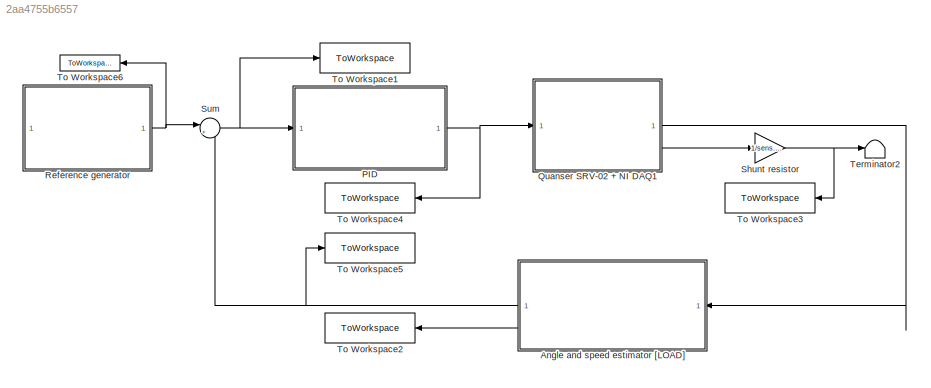
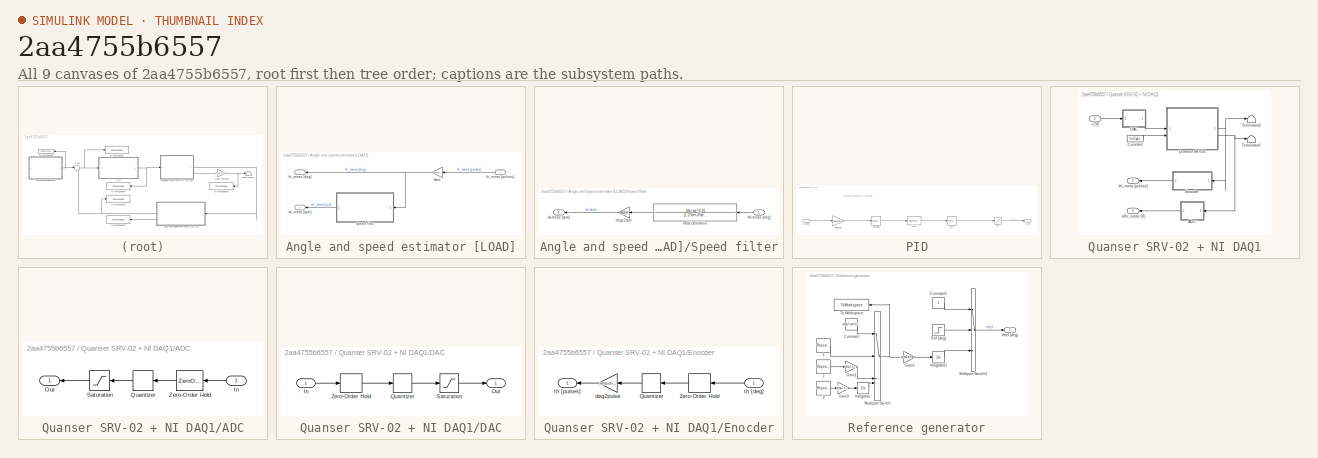
[diagram: thumbnail index - all 9 canvases of the model, root first then tree order]
MODEL slx_2aa4755b6557
KIND model
CONFIG AbsTol = auto
CONFIG EnableMultiTasking = off
CONFIG FixedStep = auto
CONFIG MaxStep = auto
CONFIG MinStep = auto
CONFIG RelTol = 1e-3
CONFIG SampleTimeConstraint = Unconstrained
CONFIG SolverName = ode45
CONFIG StartTime = 0.0
CONFIG StopTime = 5
BLOCK [SubSystem] Angle and speed estimator [LOAD]
  NameLocation = top
BLOCK [Gain] Angle and speed estimator [LOAD]/Gain
  Gain = sens.enc.pulse2deg
  NameLocation = top
BLOCK [SubSystem] Angle and speed estimator [LOAD]/Speed filter
  NameLocation = top
BLOCK [TransferFcn] Angle and speed estimator [LOAD]/Speed filter/Real Derivative
  Denominator = [1 2*der.d*der.wc der.wc^2]
  NameLocation = top
  Numerator = [der.wc^2 0]
BLOCK [Gain] Angle and speed estimator [LOAD]/Speed filter/degs2rpm
  Gain = degs2rpm
BLOCK [Inport] Angle and speed estimator [LOAD]/Speed filter/thl-meas [deg]
BLOCK [Outport] Angle and speed estimator [LOAD]/Speed filter/wl-meas [rpm]
BLOCK [Outport] Angle and speed estimator [LOAD]/th_meas [deg]
BLOCK [Inport] Angle and speed estimator [LOAD]/th_meas [pulses]
  NameLocation = top
BLOCK [Outport] Angle and speed estimator [LOAD]/wl_meas [rpm]
  Port = 2
BLOCK [SubSystem] PID
BLOCK [DiscreteTransferFcn] PID/C(z)
  Denominator = pidz.Cdenom
  InputPortMap = u0
  Numerator = pidz.Cnum
  SampleTime = T(simul.Ts_selector)
BLOCK [Saturate] PID/FIX 
  LowerLimit = -10
  UpperLimit = 10
BLOCK [ZeroOrderHold] PID/Sampler
  SampleTime = T(simul.Ts_selector)
BLOCK [ZeroOrderHold] PID/ZOH
  SampleTime = T(simul.Ts_selector)
BLOCK [Gain] PID/deg2rad
  Gain = deg2rad
BLOCK [Inport] PID/e [deg]
BLOCK [Outport] PID/u [V]
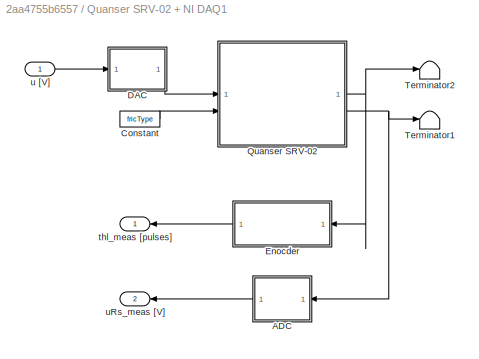
BLOCK [SubSystem] Quanser SRV-02 + NI DAQ1
BLOCK [SubSystem] Quanser SRV-02 + NI DAQ1/ADC
BLOCK [Inport] Quanser SRV-02 + NI DAQ1/ADC/In
BLOCK [Outport] Quanser SRV-02 + NI DAQ1/ADC/Out
BLOCK [Quantizer] Quanser SRV-02 + NI DAQ1/ADC/Quantizer
  QuantizationInterval = daq.adc.q
BLOCK [Saturate] Quanser SRV-02 + NI DAQ1/ADC/Saturation
  LowerLimit = -daq.adc.fs
  UpperLimit = daq.adc.fs
BLOCK [ZeroOrderHold] Quanser SRV-02 + NI DAQ1/ADC/Zero-Order Hold
  SampleTime = Ts
BLOCK [Constant] Quanser SRV-02 + NI DAQ1/Constant
  Value = fricType
BLOCK [SubSystem] Quanser SRV-02 + NI DAQ1/DAC
BLOCK [Inport] Quanser SRV-02 + NI DAQ1/DAC/In
BLOCK [Outport] Quanser SRV-02 + NI DAQ1/DAC/Out
BLOCK [Quantizer] Quanser SRV-02 + NI DAQ1/DAC/Quantizer
  QuantizationInterval = daq.dac.q
BLOCK [Saturate] Quanser SRV-02 + NI DAQ1/DAC/Saturation
  LowerLimit = -daq.dac.fs
  UpperLimit = daq.dac.fs
BLOCK [ZeroOrderHold] Quanser SRV-02 + NI DAQ1/DAC/Zero-Order Hold
  SampleTime = Ts
BLOCK [SubSystem] Quanser SRV-02 + NI DAQ1/Enocder
BLOCK [Quantizer] Quanser SRV-02 + NI DAQ1/Enocder/Quantizer
  QuantizationInterval = sens.enc.pulse2deg
BLOCK [ZeroOrderHold] Quanser SRV-02 + NI DAQ1/Enocder/Zero-Order Hold
  SampleTime = Ts
BLOCK [Gain] Quanser SRV-02 + NI DAQ1/Enocder/deg2pulse
  Gain = sens.enc.deg2pulse
BLOCK [Inport] Quanser SRV-02 + NI DAQ1/Enocder/th [deg]
BLOCK [Outport] Quanser SRV-02 + NI DAQ1/Enocder/th [pulses]
BLOCK [ModelReference] Quanser SRV-02 + NI DAQ1/Quanser SRV-02
  CopyOfModelProtected = on
  ModelNameDialog = SRV02IL_win64.slxp
  ModelReferenceVersion = 1.44
BLOCK [Terminator] Quanser SRV-02 + NI DAQ1/Terminator1
BLOCK [Terminator] Quanser SRV-02 + NI DAQ1/Terminator2
BLOCK [Outport] Quanser SRV-02 + NI DAQ1/thl_meas [pulses]
BLOCK [Inport] Quanser SRV-02 + NI DAQ1/u [V]
BLOCK [Outport] Quanser SRV-02 + NI DAQ1/uRs_meas [V]
  Port = 2
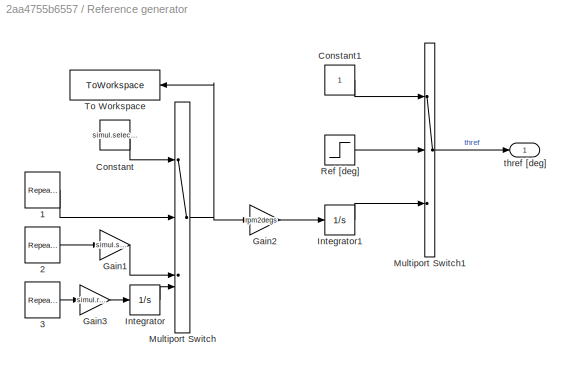
BLOCK [SubSystem] Reference generator
BLOCK [Reference] Reference generator/1  REF=simulink/Sources/Repeating
Sequence
Stair
  SourceBlock = simulink/Sources/Repeating\nSequence\nStair
  SourceType = Repeating Sequence Stair
BLOCK [Reference] Reference generator/2  REF=simulink/Sources/Repeating
Sequence
Stair
  SourceBlock = simulink/Sources/Repeating\nSequence\nStair
  SourceType = Repeating Sequence Stair
BLOCK [Reference] Reference generator/3  REF=simulink/Sources/Repeating
Sequence
Stair
  SourceBlock = simulink/Sources/Repeating\nSequence\nStair
  SourceType = Repeating Sequence Stair
BLOCK [Constant] Reference generator/Constant
  Value = simul.select2
BLOCK [Constant] Reference generator/Constant1
BLOCK [Gain] Reference generator/Gain1
  Gain = simul.stair_gain
BLOCK [Gain] Reference generator/Gain2
  Gain = rpm2degs
BLOCK [Gain] Reference generator/Gain3
  Gain = simul.ramp_gain
BLOCK [Integrator] Reference generator/Integrator
BLOCK [Integrator] Reference generator/Integrator1
BLOCK [MultiPortSwitch] Reference generator/Multiport Switch
  InputSameDT = off
  SaturateOnIntegerOverflow = off
BLOCK [MultiPortSwitch] Reference generator/Multiport Switch1
  InputSameDT = off
  Inputs = 2
  SaturateOnIntegerOverflow = off
BLOCK [Step] Reference generator/Ref [deg]
  After = 50
BLOCK [ToWorkspace] Reference generator/To Workspace
  FixptAsFi = on
  MaxDataPoints = inf
  NameLocation = top
  SampleTime = Ts
  SaveFormat = Timeseries
  VariableName = wref
BLOCK [Outport] Reference generator/thref [deg]
BLOCK [Gain] Shunt resistor
  Gain = 1/sens.curr.Rs
BLOCK [Sum] Sum
  Inputs = |+-
BLOCK [Terminator] Terminator2
BLOCK [ToWorkspace] To Workspace1
  FixptAsFi = on
  MaxDataPoints = inf
  SampleTime = Ts
  SaveFormat = Structure With Time
  VariableName = e
BLOCK [ToWorkspace] To Workspace2
  FixptAsFi = on
  MaxDataPoints = inf
  NameLocation = top
  SampleTime = Ts
  SaveFormat = Structure With Time
  VariableName = wl_meas
BLOCK [ToWorkspace] To Workspace3
  FixptAsFi = on
  MaxDataPoints = inf
  NameLocation = top
  SampleTime = Ts
  SaveFormat = Structure With Time
  VariableName = ia
BLOCK [ToWorkspace] To Workspace4
  FixptAsFi = on
  MaxDataPoints = inf
  NameLocation = top
  SampleTime = Ts
  SaveFormat = Structure With Time
  VariableName = u
BLOCK [ToWorkspace] To Workspace5
  FixptAsFi = on
  MaxDataPoints = inf
  SampleTime = Ts
  SaveFormat = Structure With Time
  VariableName = thl_meas
BLOCK [ToWorkspace] To Workspace6
  FixptAsFi = on
  MaxDataPoints = inf
  NameLocation = top
  SampleTime = Ts
  SaveFormat = Structure With Time
  VariableName = thref
ANNOTATION PID: Emulation method for Controller
NET Angle and speed estimator [LOAD]/Gain:1 -> Angle and speed estimator [LOAD]/Speed filter:1, Angle and speed estimator [LOAD]/th_meas [deg]:1
LINE Angle and speed estimator [LOAD]/Speed filter/Real Derivative:1 -> Angle and speed estimator [LOAD]/Speed filter/degs2rpm:1
LINE Angle and speed estimator [LOAD]/Speed filter/degs2rpm:1 -> Angle and speed estimator [LOAD]/Speed filter/wl-meas [rpm]:1
LINE Angle and speed estimator [LOAD]/Speed filter/thl-meas [deg]:1 -> Angle and speed estimator [LOAD]/Speed filter/Real Derivative:1
LINE Angle and speed estimator [LOAD]/Speed filter:1 -> Angle and speed estimator [LOAD]/wl_meas [rpm]:1
LINE Angle and speed estimator [LOAD]/th_meas [pulses]:1 -> Angle and speed estimator [LOAD]/Gain:1
NET Angle and speed estimator [LOAD]:1 -> Sum:2, To Workspace5:1
LINE Angle and speed estimator [LOAD]:2 -> To Workspace2:1
LINE PID/C(z):1 -> PID/ZOH:1
LINE PID/FIX :1 -> PID/u [V]:1
LINE PID/Sampler:1 -> PID/C(z):1
LINE PID/ZOH:1 -> PID/FIX :1
LINE PID/deg2rad:1 -> PID/Sampler:1
LINE PID/e [deg]:1 -> PID/deg2rad:1
NET PID:1 -> Quanser SRV-02 + NI DAQ1:1, To Workspace4:1
LINE Quanser SRV-02 + NI DAQ1/ADC/In:1 -> Quanser SRV-02 + NI DAQ1/ADC/Zero-Order Hold:1
LINE Quanser SRV-02 + NI DAQ1/ADC/Quantizer:1 -> Quanser SRV-02 + NI DAQ1/ADC/Saturation:1
LINE Quanser SRV-02 + NI DAQ1/ADC/Saturation:1 -> Quanser SRV-02 + NI DAQ1/ADC/Out:1
LINE Quanser SRV-02 + NI DAQ1/ADC/Zero-Order Hold:1 -> Quanser SRV-02 + NI DAQ1/ADC/Quantizer:1
LINE Quanser SRV-02 + NI DAQ1/ADC:1 -> Quanser SRV-02 + NI DAQ1/uRs_meas [V]:1
LINE Quanser SRV-02 + NI DAQ1/Constant:1 -> Quanser SRV-02 + NI DAQ1/Quanser SRV-02:2
LINE Quanser SRV-02 + NI DAQ1/DAC/In:1 -> Quanser SRV-02 + NI DAQ1/DAC/Zero-Order Hold:1
LINE Quanser SRV-02 + NI DAQ1/DAC/Quantizer:1 -> Quanser SRV-02 + NI DAQ1/DAC/Saturation:1
LINE Quanser SRV-02 + NI DAQ1/DAC/Saturation:1 -> Quanser SRV-02 + NI DAQ1/DAC/Out:1
LINE Quanser SRV-02 + NI DAQ1/DAC/Zero-Order Hold:1 -> Quanser SRV-02 + NI DAQ1/DAC/Quantizer:1
LINE Quanser SRV-02 + NI DAQ1/DAC:1 -> Quanser SRV-02 + NI DAQ1/Quanser SRV-02:1
LINE Quanser SRV-02 + NI DAQ1/Enocder/Quantizer:1 -> Quanser SRV-02 + NI DAQ1/Enocder/deg2pulse:1
LINE Quanser SRV-02 + NI DAQ1/Enocder/Zero-Order Hold:1 -> Quanser SRV-02 + NI DAQ1/Enocder/Quantizer:1
LINE Quanser SRV-02 + NI DAQ1/Enocder/deg2pulse:1 -> Quanser SRV-02 + NI DAQ1/Enocder/th [pulses]:1
LINE Quanser SRV-02 + NI DAQ1/Enocder/th [deg]:1 -> Quanser SRV-02 + NI DAQ1/Enocder/Zero-Order Hold:1
LINE Quanser SRV-02 + NI DAQ1/Enocder:1 -> Quanser SRV-02 + NI DAQ1/thl_meas [pulses]:1
NET Quanser SRV-02 + NI DAQ1/Quanser SRV-02:1 -> Quanser SRV-02 + NI DAQ1/Enocder:1, Quanser SRV-02 + NI DAQ1/Terminator2:1
NET Quanser SRV-02 + NI DAQ1/Quanser SRV-02:2 -> Quanser SRV-02 + NI DAQ1/ADC:1, Quanser SRV-02 + NI DAQ1/Terminator1:1
LINE Quanser SRV-02 + NI DAQ1/u [V]:1 -> Quanser SRV-02 + NI DAQ1/DAC:1
LINE Quanser SRV-02 + NI DAQ1:1 -> Angle and speed estimator [LOAD]:1
LINE Quanser SRV-02 + NI DAQ1:2 -> Shunt resistor:1
LINE Reference generator/1:1 -> Reference generator/Multiport Switch:2
LINE Reference generator/2:1 -> Reference generator/Gain1:1
LINE Reference generator/3:1 -> Reference generator/Gain3:1
LINE Reference generator/Constant1:1 -> Reference generator/Multiport Switch1:1
LINE Reference generator/Constant:1 -> Reference generator/Multiport Switch:1
LINE Reference generator/Gain1:1 -> Reference generator/Multiport Switch:3
LINE Reference generator/Gain2:1 -> Reference generator/Integrator1:1
LINE Reference generator/Gain3:1 -> Reference generator/Integrator:1
LINE Reference generator/Integrator1:1 -> Reference generator/Multiport Switch1:3
LINE Reference generator/Integrator:1 -> Reference generator/Multiport Switch:4
LINE Reference generator/Multiport Switch1:1 -> Reference generator/thref [deg]:1
NET Reference generator/Multiport Switch:1 -> Reference generator/Gain2:1, Reference generator/To Workspace:1
LINE Reference generator/Ref [deg]:1 -> Reference generator/Multiport Switch1:2
NET Reference generator:1 -> Sum:1, To Workspace6:1
NET Shunt resistor:1 -> Terminator2:1, To Workspace3:1
NET Sum:1 -> PID:1, To Workspace1:1
note: NET lines group one-source signal fan-out (src -> all destinations, sorted); 1:1 wires keep LINE
